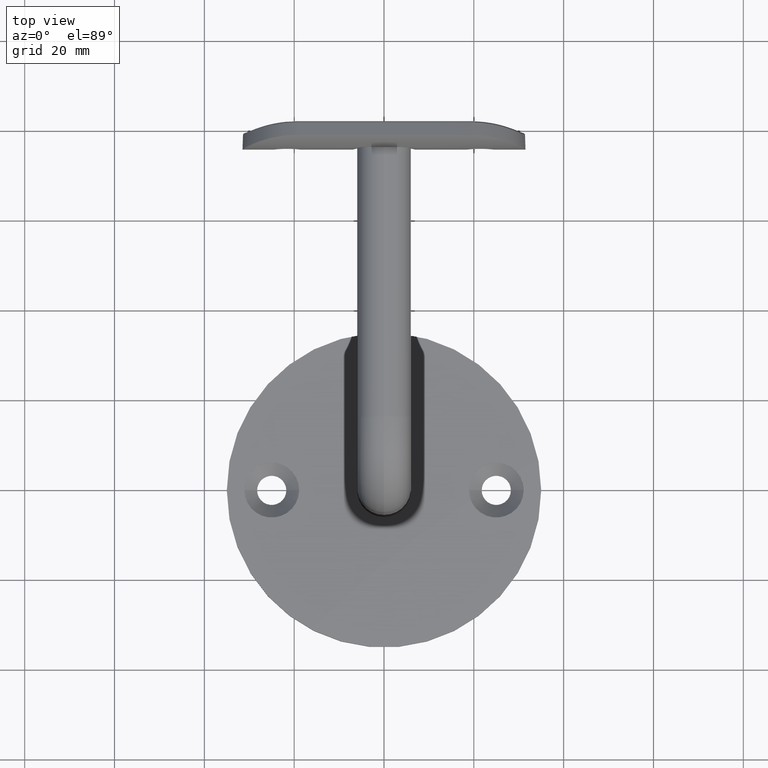
[diagram: clean part render]
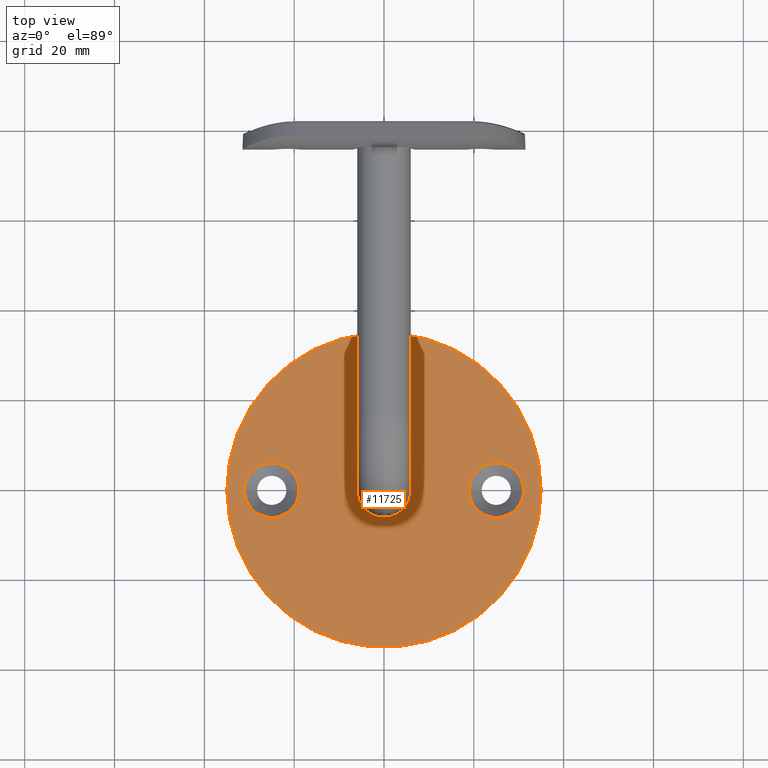
[diagram: same view with one face highlighted and labeled with its STEP entity id]
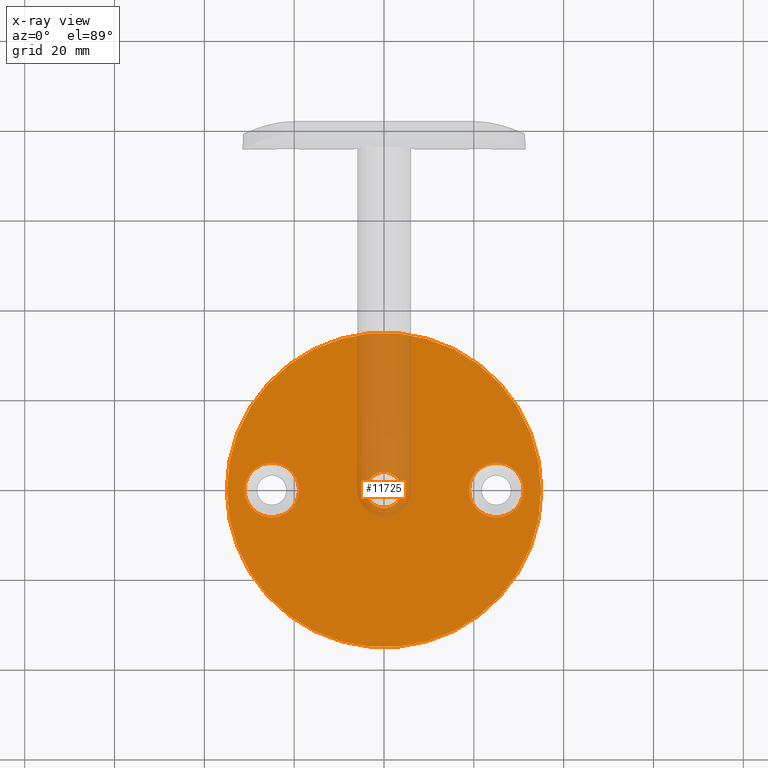
[diagram: x-ray of the same camera — body ghosted, the highlighted face saturated]
A machine part, top view. The second image highlights one B-rep face of the part: STEP entity #11725.
The next image is the same camera in x-ray: the body ghosted, the highlighted face saturated — about 12% of this face is hidden behind the body in this view.
In plain terms, the highlighted planar face has unit normal (0, 0, 1).
Its self-contained STEP definition (entity closure, byte-faithful):
#302 = PLANE ( 'NONE',  #5780 ) ;
#373 = DIRECTION ( 'NONE',  ( -0.000000000000000000, -0.000000000000000000, 1.000000000000000000 ) ) ;
#514 = ORIENTED_EDGE ( 'NONE', *, *, #5409, .F. ) ;
#848 = CARTESIAN_POINT ( 'NONE',  ( 0.000000000000000000, 0.000000000000000000, 4.000000000000000000 ) ) ;
#1035 = CIRCLE ( 'NONE', #14020, 3.999999999999999112 ) ;
#1185 = ORIENTED_EDGE ( 'NONE', *, *, #13256, .T. ) ;
#1243 = EDGE_LOOP ( 'NONE', ( #8639, #15384 ) ) ;
#1611 = EDGE_CURVE ( 'NONE', #13066, #2667, #2258, .T. ) ;
#1683 = CARTESIAN_POINT ( 'NONE',  ( 0.000000000000000000, 0.000000000000000000, 4.000000000000000000 ) ) ;
#2258 = CIRCLE ( 'NONE', #18083, 6.100000000000001421 ) ;
#2390 = DIRECTION ( 'NONE',  ( -1.000000000000000000, 0.000000000000000000, 0.000000000000000000 ) ) ;
#2511 = DIRECTION ( 'NONE',  ( -0.000000000000000000, -0.000000000000000000, -1.000000000000000000 ) ) ;
#2667 = VERTEX_POINT ( 'NONE', #6044 ) ;
#3145 = CIRCLE ( 'NONE', #6731, 6.100000000000001421 ) ;
#3289 = AXIS2_PLACEMENT_3D ( 'NONE', #848, #14361, #11265 ) ;
#3537 = CIRCLE ( 'NONE', #13595, 3.999999999999999112 ) ;
#4322 = VERTEX_POINT ( 'NONE', #13836 ) ;
#5409 = EDGE_CURVE ( 'NONE', #2667, #13066, #3145, .T. ) ;
#5780 = AXIS2_PLACEMENT_3D ( 'NONE', #1683, #12179, #15235 ) ;
#5946 = CIRCLE ( 'NONE', #6631, 6.100000000000001421 ) ;
#6008 = CARTESIAN_POINT ( 'NONE',  ( 25.00000000000000000, 0.000000000000000000, 4.000000000000000000 ) ) ;
#6044 = CARTESIAN_POINT ( 'NONE',  ( -18.89999999999999858, 0.000000000000000000, 4.000000000000000000 ) ) ;
#6173 = ORIENTED_EDGE ( 'NONE', *, *, #14758, .T. ) ;
#6631 = AXIS2_PLACEMENT_3D ( 'NONE', #14970, #16370, #8842 ) ;
#6731 = AXIS2_PLACEMENT_3D ( 'NONE', #10857, #373, #10992 ) ;
#6858 = VERTEX_POINT ( 'NONE', #12654 ) ;
#7557 = EDGE_CURVE ( 'NONE', #13085, #10116, #12185, .T. ) ;
#7856 = CIRCLE ( 'NONE', #18523, 34.99999999999999289 ) ;
#8319 = CARTESIAN_POINT ( 'NONE',  ( 0.000000000000000000, 0.000000000000000000, 3.999999999999999112 ) ) ;
#8639 = ORIENTED_EDGE ( 'NONE', *, *, #10952, .F. ) ;
#8788 = CARTESIAN_POINT ( 'NONE',  ( 34.99999999999999289, 4.286263797015735707E-15, 4.000000000000000000 ) ) ;
#8832 = ORIENTED_EDGE ( 'NONE', *, *, #9451, .T. ) ;
#8842 = DIRECTION ( 'NONE',  ( 1.000000000000000000, 0.000000000000000000, 0.000000000000000000 ) ) ;
#9026 = DIRECTION ( 'NONE',  ( -0.000000000000000000, -0.000000000000000000, 1.000000000000000000 ) ) ;
#9190 = ORIENTED_EDGE ( 'NONE', *, *, #12357, .T. ) ;
#9451 = EDGE_CURVE ( 'NONE', #17834, #18217, #7856, .T. ) ;
#9790 = CARTESIAN_POINT ( 'NONE',  ( 18.89999999999999858, 7.470345474798856265E-16, 4.000000000000000000 ) ) ;
#9855 = EDGE_LOOP ( 'NONE', ( #514, #17659 ) ) ;
#10116 = VERTEX_POINT ( 'NONE', #13603 ) ;
#10400 = FACE_BOUND ( 'NONE', #1243, .T. ) ;
#10849 = EDGE_LOOP ( 'NONE', ( #9190, #6173 ) ) ;
#10857 = CARTESIAN_POINT ( 'NONE',  ( -25.00000000000000000, 0.000000000000000000, 4.000000000000000000 ) ) ;
#10901 = AXIS2_PLACEMENT_3D ( 'NONE', #6008, #9026, #15161 ) ;
#10952 = EDGE_CURVE ( 'NONE', #10116, #13085, #5946, .T. ) ;
#10992 = DIRECTION ( 'NONE',  ( 1.000000000000000000, 0.000000000000000000, 0.000000000000000000 ) ) ;
#11265 = DIRECTION ( 'NONE',  ( 1.000000000000000000, 0.000000000000000000, 0.000000000000000000 ) ) ;
#11280 = CARTESIAN_POINT ( 'NONE',  ( -31.10000000000000142, 7.470345474798856265E-16, 4.000000000000000000 ) ) ;
#11347 = FACE_OUTER_BOUND ( 'NONE', #14053, .T. ) ;
#11606 = CARTESIAN_POINT ( 'NONE',  ( 0.000000000000000000, 0.000000000000000000, 3.999999999999999112 ) ) ;
#11725 = ADVANCED_FACE ( 'NONE', ( #11347, #10400, #17270, #14423 ), #302, .T. ) ;
#12179 = DIRECTION ( 'NONE',  ( 0.000000000000000000, 0.000000000000000000, 1.000000000000000000 ) ) ;
#12185 = CIRCLE ( 'NONE', #10901, 6.100000000000001421 ) ;
#12357 = EDGE_CURVE ( 'NONE', #6858, #4322, #3537, .T. ) ;
#12547 = CARTESIAN_POINT ( 'NONE',  ( -25.00000000000000000, 0.000000000000000000, 4.000000000000000000 ) ) ;
#12654 = CARTESIAN_POINT ( 'NONE',  ( -3.999999999999999112, 0.000000000000000000, 3.999999999999999112 ) ) ;
#13066 = VERTEX_POINT ( 'NONE', #11280 ) ;
#13085 = VERTEX_POINT ( 'NONE', #9790 ) ;
#13256 = EDGE_CURVE ( 'NONE', #18217, #17834, #18413, .T. ) ;
#13362 = DIRECTION ( 'NONE',  ( 0.000000000000000000, 0.000000000000000000, 1.000000000000000000 ) ) ;
#13595 = AXIS2_PLACEMENT_3D ( 'NONE', #11606, #16192, #2390 ) ;
#13603 = CARTESIAN_POINT ( 'NONE',  ( 31.10000000000000142, 0.000000000000000000, 4.000000000000000000 ) ) ;
#13836 = CARTESIAN_POINT ( 'NONE',  ( 3.999999999999999112, 4.898587196589411843E-16, 3.999999999999999112 ) ) ;
#14020 = AXIS2_PLACEMENT_3D ( 'NONE', #8319, #2511, #15977 ) ;
#14053 = EDGE_LOOP ( 'NONE', ( #8832, #1185 ) ) ;
#14361 = DIRECTION ( 'NONE',  ( 0.000000000000000000, 0.000000000000000000, 1.000000000000000000 ) ) ;
#14423 = FACE_BOUND ( 'NONE', #10849, .T. ) ;
#14758 = EDGE_CURVE ( 'NONE', #4322, #6858, #1035, .T. ) ;
#14964 = CARTESIAN_POINT ( 'NONE',  ( 0.000000000000000000, 0.000000000000000000, 4.000000000000000000 ) ) ;
#14970 = CARTESIAN_POINT ( 'NONE',  ( 25.00000000000000000, 0.000000000000000000, 4.000000000000000000 ) ) ;
#15161 = DIRECTION ( 'NONE',  ( 1.000000000000000000, 0.000000000000000000, 0.000000000000000000 ) ) ;
#15207 = CARTESIAN_POINT ( 'NONE',  ( -34.99999999999999289, 0.000000000000000000, 4.000000000000000000 ) ) ;
#15235 = DIRECTION ( 'NONE',  ( 1.000000000000000000, 0.000000000000000000, -0.000000000000000000 ) ) ;
#15348 = DIRECTION ( 'NONE',  ( -0.000000000000000000, -0.000000000000000000, 1.000000000000000000 ) ) ;
#15384 = ORIENTED_EDGE ( 'NONE', *, *, #7557, .F. ) ;
#15483 = DIRECTION ( 'NONE',  ( 1.000000000000000000, 0.000000000000000000, 0.000000000000000000 ) ) ;
#15977 = DIRECTION ( 'NONE',  ( -1.000000000000000000, 0.000000000000000000, 0.000000000000000000 ) ) ;
#16192 = DIRECTION ( 'NONE',  ( -0.000000000000000000, -0.000000000000000000, -1.000000000000000000 ) ) ;
#16370 = DIRECTION ( 'NONE',  ( -0.000000000000000000, -0.000000000000000000, 1.000000000000000000 ) ) ;
#17270 = FACE_BOUND ( 'NONE', #9855, .T. ) ;
#17659 = ORIENTED_EDGE ( 'NONE', *, *, #1611, .F. ) ;
#17834 = VERTEX_POINT ( 'NONE', #15207 ) ;
#18083 = AXIS2_PLACEMENT_3D ( 'NONE', #12547, #15348, #15483 ) ;
#18217 = VERTEX_POINT ( 'NONE', #8788 ) ;
#18413 = CIRCLE ( 'NONE', #3289, 34.99999999999999289 ) ;
#18523 = AXIS2_PLACEMENT_3D ( 'NONE', #14964, #13362, #19465 ) ;
#19465 = DIRECTION ( 'NONE',  ( 1.000000000000000000, 0.000000000000000000, 0.000000000000000000 ) ) ;